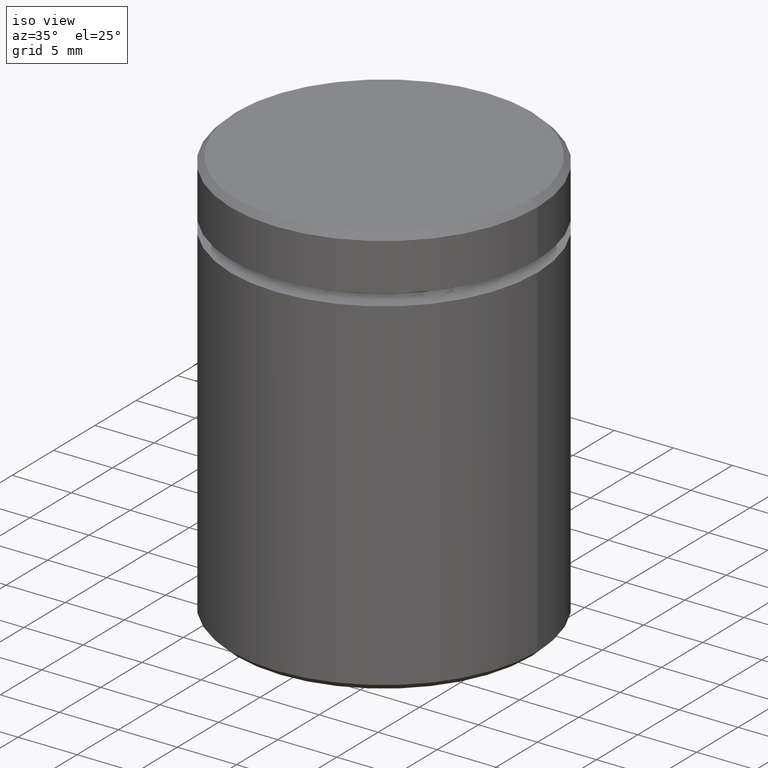
[diagram: clean part render]
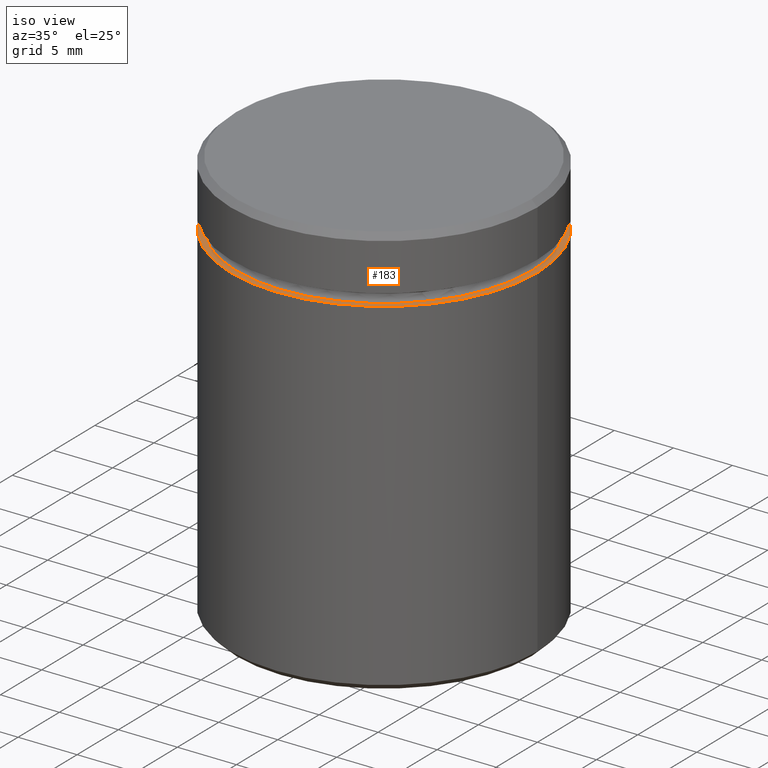
[diagram: same view with one face highlighted and labeled with its STEP entity id]
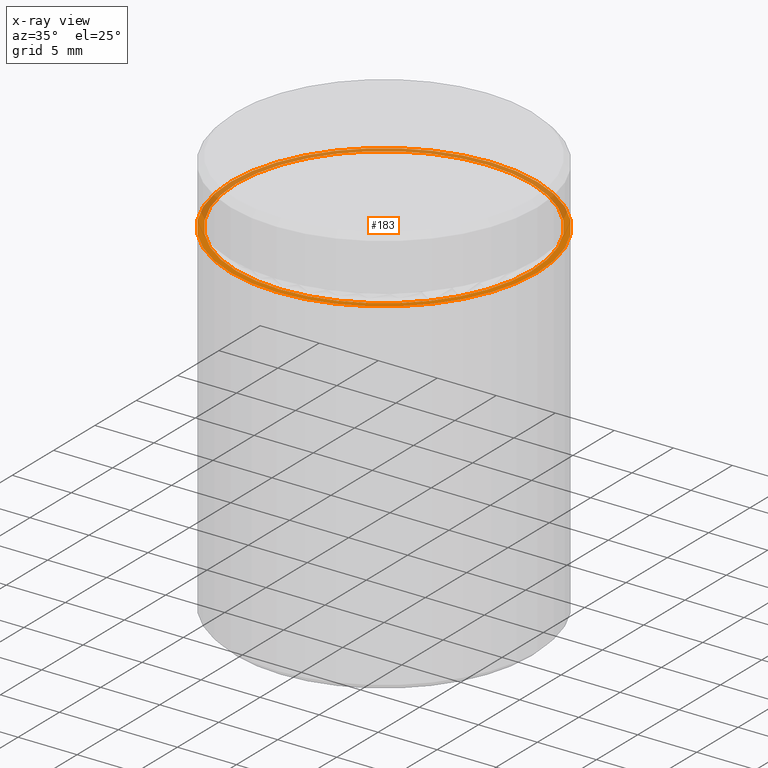
[diagram: x-ray of the same camera — body ghosted, the highlighted face saturated]
A machine part, iso view. The second image highlights one B-rep face of the part: STEP entity #183.
The next image is the same camera in x-ray: the body ghosted, the highlighted face saturated — about 45% of this face is hidden behind the body in this view.
In plain terms, the highlighted planar face has unit normal (0, -0, 1).
Its self-contained STEP definition (entity closure, byte-faithful):
#4 = PLANE ( 'NONE',  #371 ) ;
#6 = VERTEX_POINT ( 'NONE', #184 ) ;
#7 = EDGE_LOOP ( 'NONE', ( #503, #127 ) ) ;
#39 = DIRECTION ( 'NONE',  ( 0.000000000000000000, 0.000000000000000000, -1.000000000000000000 ) ) ;
#48 = CARTESIAN_POINT ( 'NONE',  ( 0.000000000000000000, 0.000000000000000000, -5.500000000000000000 ) ) ;
#99 = DIRECTION ( 'NONE',  ( 0.000000000000000000, -0.000000000000000000, 1.000000000000000000 ) ) ;
#121 = EDGE_CURVE ( 'NONE', #208, #445, #416, .T. ) ;
#127 = ORIENTED_EDGE ( 'NONE', *, *, #396, .T. ) ;
#140 = DIRECTION ( 'NONE',  ( 1.000000000000000000, 0.000000000000000000, 0.000000000000000000 ) ) ;
#150 = DIRECTION ( 'NONE',  ( 1.000000000000000000, 0.000000000000000000, 0.000000000000000000 ) ) ;
#155 = CARTESIAN_POINT ( 'NONE',  ( 0.000000000000000000, 0.000000000000000000, -5.500000000000000000 ) ) ;
#162 = AXIS2_PLACEMENT_3D ( 'NONE', #48, #440, #406 ) ;
#174 = CARTESIAN_POINT ( 'NONE',  ( 0.000000000000000000, 12.00000000000000000, -5.500000000000000000 ) ) ;
#183 = ADVANCED_FACE ( 'NONE', ( #317, #312 ), #4, .T. ) ;
#184 = CARTESIAN_POINT ( 'NONE',  ( 12.50000000000000000, 0.000000000000000000, -5.500000000000000000 ) ) ;
#192 = DIRECTION ( 'NONE',  ( 1.000000000000000000, 0.000000000000000000, 0.000000000000000000 ) ) ;
#208 = VERTEX_POINT ( 'NONE', #278 ) ;
#244 = CARTESIAN_POINT ( 'NONE',  ( 0.000000000000000000, 0.000000000000000000, -5.500000000000000000 ) ) ;
#252 = CIRCLE ( 'NONE', #288, 12.50000000000000000 ) ;
#265 = EDGE_CURVE ( 'NONE', #309, #6, #252, .T. ) ;
#278 = CARTESIAN_POINT ( 'NONE',  ( 13.00000000000000000, 0.000000000000000000, -5.500000000000000000 ) ) ;
#284 = DIRECTION ( 'NONE',  ( 0.000000000000000000, 0.000000000000000000, -1.000000000000000000 ) ) ;
#288 = AXIS2_PLACEMENT_3D ( 'NONE', #438, #39, #192 ) ;
#290 = EDGE_CURVE ( 'NONE', #6, #309, #423, .T. ) ;
#293 = CARTESIAN_POINT ( 'NONE',  ( -12.50000000000000000, 1.530808498934191521E-15, -5.500000000000000000 ) ) ;
#309 = VERTEX_POINT ( 'NONE', #293 ) ;
#312 = FACE_OUTER_BOUND ( 'NONE', #7, .T. ) ;
#317 = FACE_BOUND ( 'NONE', #321, .T. ) ;
#321 = EDGE_LOOP ( 'NONE', ( #543, #478 ) ) ;
#371 = AXIS2_PLACEMENT_3D ( 'NONE', #174, #99, #140 ) ;
#396 = EDGE_CURVE ( 'NONE', #445, #208, #437, .T. ) ;
#406 = DIRECTION ( 'NONE',  ( 1.000000000000000000, 0.000000000000000000, 0.000000000000000000 ) ) ;
#416 = CIRCLE ( 'NONE', #162, 13.00000000000000000 ) ;
#423 = CIRCLE ( 'NONE', #484, 12.50000000000000000 ) ;
#424 = DIRECTION ( 'NONE',  ( -0.000000000000000000, -0.000000000000000000, 1.000000000000000000 ) ) ;
#437 = CIRCLE ( 'NONE', #531, 13.00000000000000000 ) ;
#438 = CARTESIAN_POINT ( 'NONE',  ( 0.000000000000000000, 0.000000000000000000, -5.500000000000000000 ) ) ;
#440 = DIRECTION ( 'NONE',  ( -0.000000000000000000, -0.000000000000000000, 1.000000000000000000 ) ) ;
#445 = VERTEX_POINT ( 'NONE', #562 ) ;
#457 = DIRECTION ( 'NONE',  ( 1.000000000000000000, 0.000000000000000000, 0.000000000000000000 ) ) ;
#478 = ORIENTED_EDGE ( 'NONE', *, *, #265, .T. ) ;
#484 = AXIS2_PLACEMENT_3D ( 'NONE', #155, #284, #150 ) ;
#503 = ORIENTED_EDGE ( 'NONE', *, *, #121, .T. ) ;
#531 = AXIS2_PLACEMENT_3D ( 'NONE', #244, #424, #457 ) ;
#543 = ORIENTED_EDGE ( 'NONE', *, *, #290, .T. ) ;
#562 = CARTESIAN_POINT ( 'NONE',  ( -13.00000000000000000, 1.592040838891559095E-15, -5.500000000000000000 ) ) ;